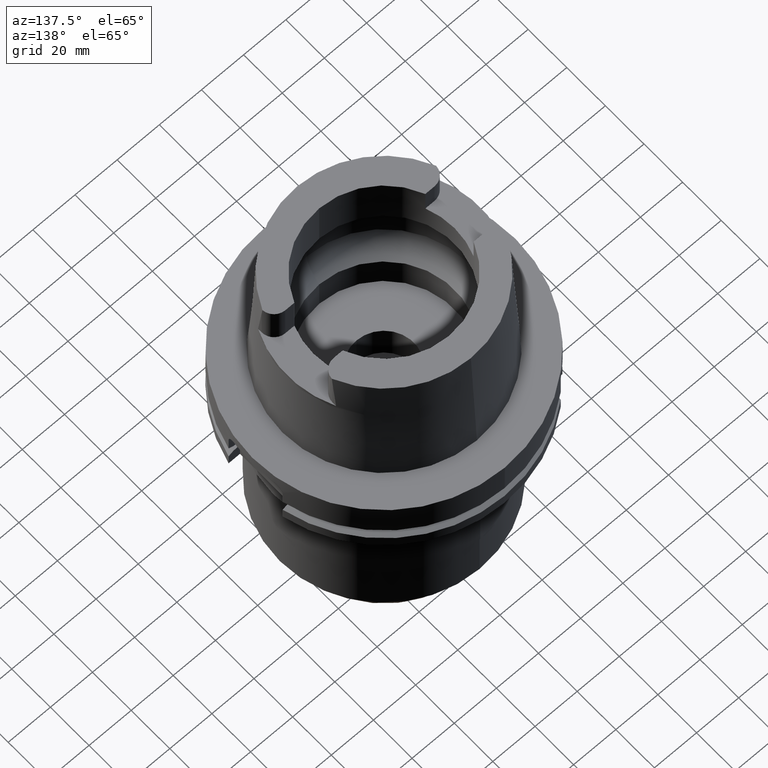
[diagram: clean part render]
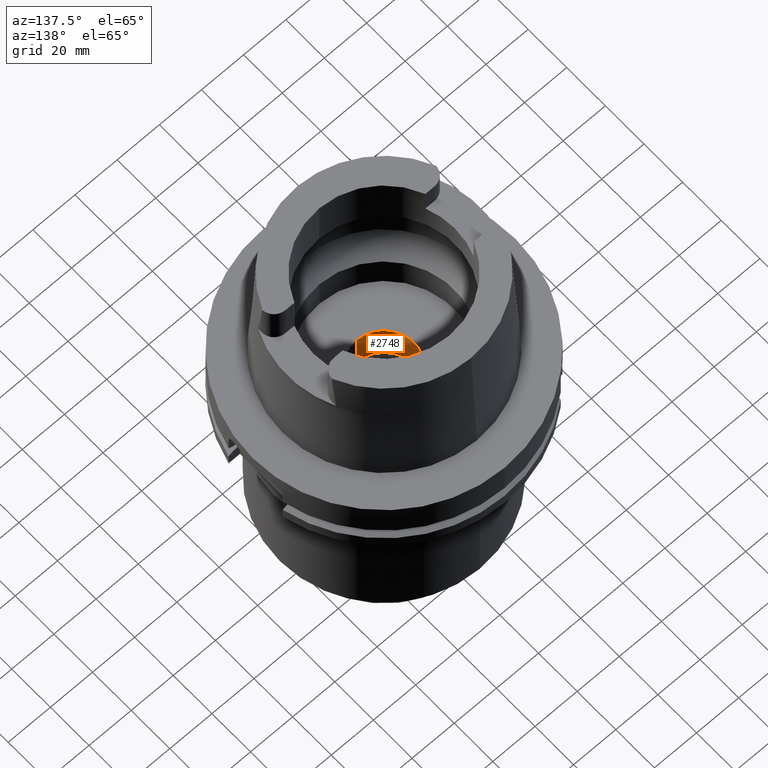
[diagram: same view with one face highlighted and labeled with its STEP entity id]
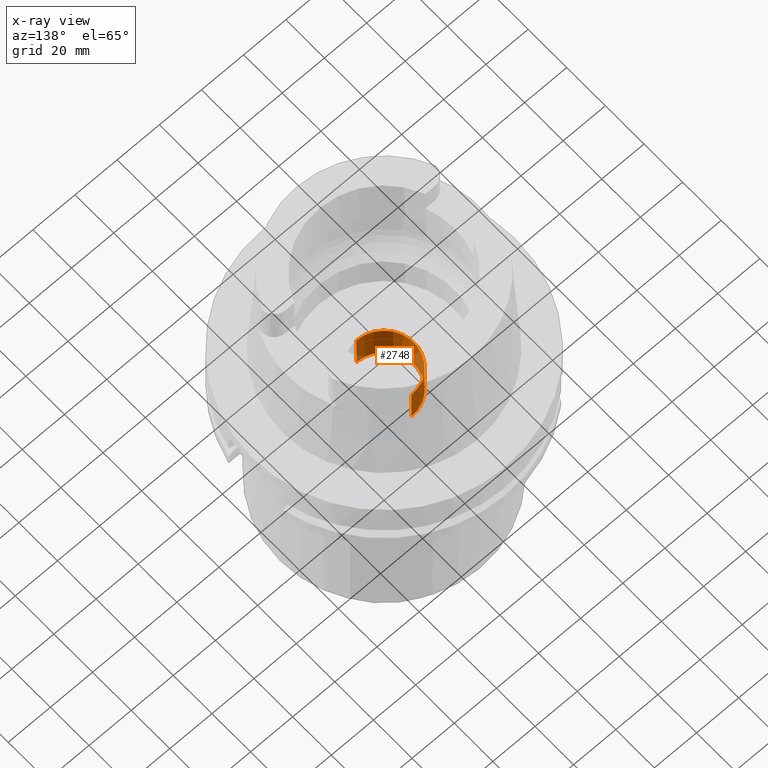
[diagram: x-ray of the same camera — body ghosted, the highlighted face saturated]
A machine part, auxiliary view. The second image highlights one B-rep face of the part: STEP entity #2748.
The next image is the same camera in x-ray: the body ghosted, the highlighted face saturated — about 31% of this face is hidden behind the body in this view.
In plain terms, the highlighted cylindrical surface (partial cylindrical patch) has radius 14.25 mm, axis along (0, 0, -1).
Its self-contained STEP definition (entity closure, byte-faithful):
#575=CARTESIAN_POINT('',(0.E0,1.497130711958E-14,-1.595E1));
#576=DIRECTION('',(0.E0,0.E0,1.E0));
#577=DIRECTION('',(0.E0,1.E0,0.E0));
#578=AXIS2_PLACEMENT_3D('',#575,#576,#577);
#583=DIRECTION('',(0.E0,0.E0,1.E0));
#584=VECTOR('',#583,1.8E1);
#585=CARTESIAN_POINT('',(0.E0,1.425E1,-3.395E1));
#586=LINE('',#585,#584);
#590=DIRECTION('',(0.E0,0.E0,1.E0));
#591=VECTOR('',#590,1.8E1);
#592=CARTESIAN_POINT('',(0.E0,-1.425E1,-3.395E1));
#593=LINE('',#592,#591);
#597=CARTESIAN_POINT('',(0.E0,1.497130711958E-14,-3.395E1));
#598=DIRECTION('',(0.E0,0.E0,-1.E0));
#599=DIRECTION('',(0.E0,-1.E0,0.E0));
#600=AXIS2_PLACEMENT_3D('',#597,#598,#599);
#2073=CARTESIAN_POINT('',(0.E0,-1.425E1,-1.595E1));
#2074=CARTESIAN_POINT('',(0.E0,1.425E1,-1.595E1));
#2075=VERTEX_POINT('',#2073);
#2076=VERTEX_POINT('',#2074);
#2077=CARTESIAN_POINT('',(0.E0,1.425E1,-3.395E1));
#2078=VERTEX_POINT('',#2077);
#2079=CARTESIAN_POINT('',(0.E0,-1.425E1,-3.395E1));
#2080=VERTEX_POINT('',#2079);
#2736=CARTESIAN_POINT('',(0.E0,1.497130711958E-14,7.225E1));
#2737=DIRECTION('',(0.E0,0.E0,-1.E0));
#2738=DIRECTION('',(0.E0,-1.E0,0.E0));
#2739=AXIS2_PLACEMENT_3D('',#2736,#2737,#2738);
#2740=CYLINDRICAL_SURFACE('',#2739,1.425E1);
#2741=ORIENTED_EDGE('',*,*,#2726,.F.);
#2743=ORIENTED_EDGE('',*,*,#2742,.F.);
#2744=ORIENTED_EDGE('',*,*,#2729,.T.);
#2745=ORIENTED_EDGE('',*,*,#2716,.F.);
#2746=EDGE_LOOP('',(#2741,#2743,#2744,#2745));
#2747=FACE_OUTER_BOUND('',#2746,.F.);
#579=CIRCLE('',#578,1.425E1);
#601=CIRCLE('',#600,1.425E1);
#2716=EDGE_CURVE('',#2076,#2075,#579,.T.);
#2726=EDGE_CURVE('',#2078,#2076,#586,.T.);
#2729=EDGE_CURVE('',#2080,#2075,#593,.T.);
#2742=EDGE_CURVE('',#2080,#2078,#601,.T.);
#2748=ADVANCED_FACE('',(#2747),#2740,.F.);